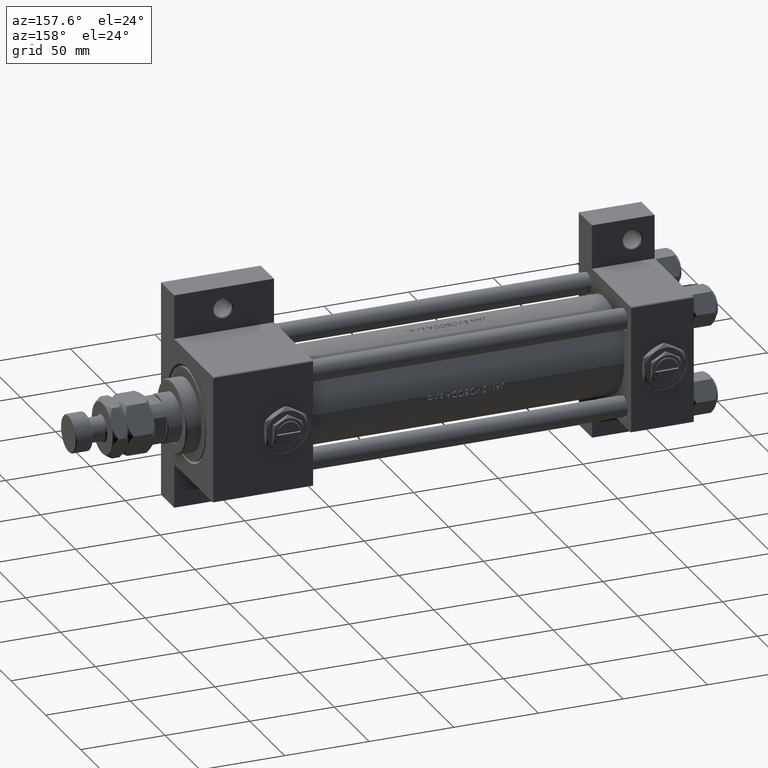
[diagram: clean part render]
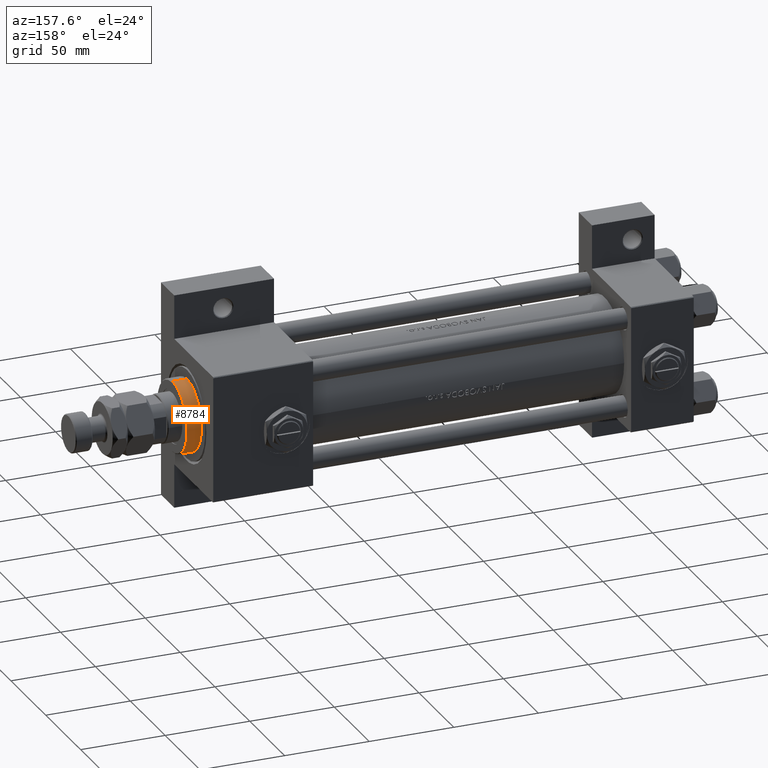
[diagram: same view with one face highlighted and labeled with its STEP entity id]
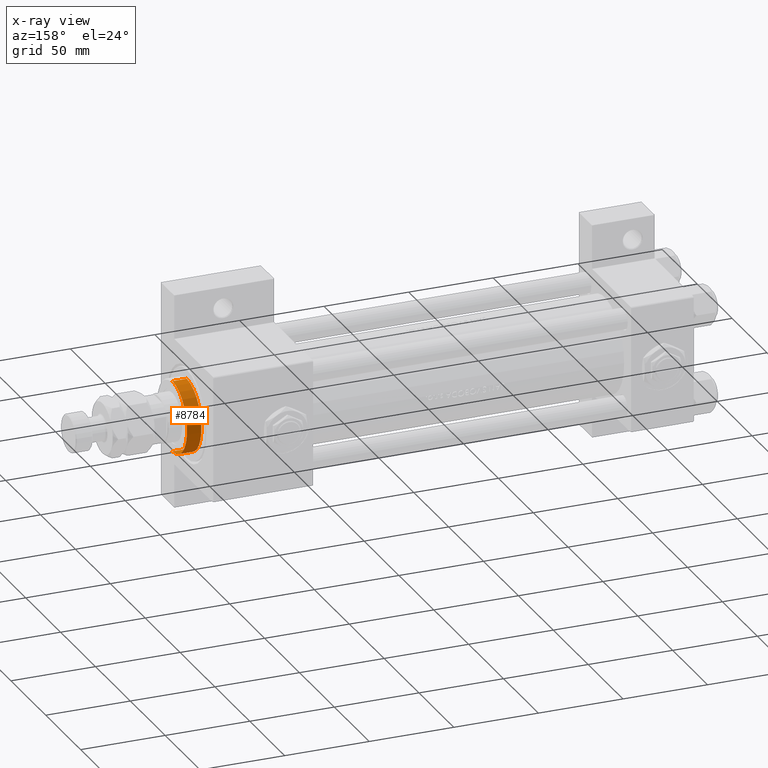
[diagram: x-ray of the same camera — body ghosted, the highlighted face saturated]
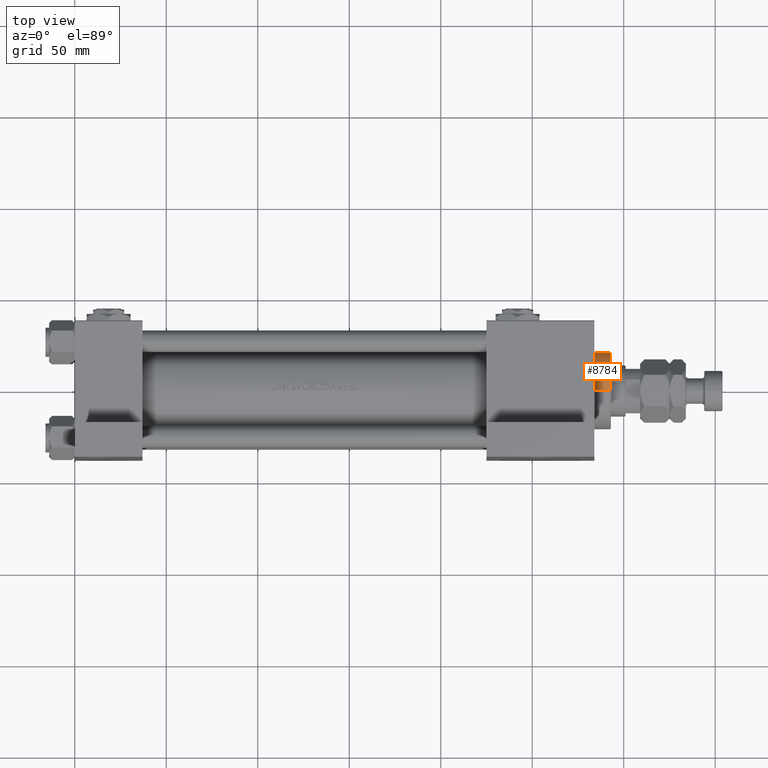
[diagram: same view with one face highlighted and labeled with its STEP entity id]
A machine part, auxiliary view. The second image highlights one B-rep face of the part: STEP entity #8784.
The next image is the same camera in x-ray: the body ghosted, the highlighted face saturated — about 0% of this face is hidden behind the body in this view.
A second angle (top view) of the same face is appended — the face is thin or edge-on in the first view.
In plain terms, the highlighted cylindrical surface (partial cylindrical patch) has radius 21 mm, axis along (-1, -0, 0).
Its self-contained STEP definition (entity closure, byte-faithful):
#432 = CARTESIAN_POINT ( 'NONE',  ( 0.000000000000000000, 0.000000000000000000, 37.19999999999999574 ) ) ;
#567 = CIRCLE ( 'NONE', #35744, 21.00000000000000000 ) ;
#1096 = DIRECTION ( 'NONE',  ( -0.000000000000000000, -0.000000000000000000, -1.000000000000000000 ) ) ;
#2176 = DIRECTION ( 'NONE',  ( -0.000000000000000000, -0.000000000000000000, -1.000000000000000000 ) ) ;
#6128 = VECTOR ( 'NONE', #1096, 1000.000000000000000 ) ;
#6872 = DIRECTION ( 'NONE',  ( 1.000000000000000000, 0.000000000000000000, 0.000000000000000000 ) ) ;
#6964 = VERTEX_POINT ( 'NONE', #38831 ) ;
#7480 = CARTESIAN_POINT ( 'NONE',  ( -21.00000000000000000, 0.000000000000000000, 37.19999999999999574 ) ) ;
#8449 = CARTESIAN_POINT ( 'NONE',  ( -21.00000000000000000, 0.000000000000000000, 28.69999999999999929 ) ) ;
#8784 = ADVANCED_FACE ( 'NONE', ( #17609 ), #28631, .T. ) ;
#10629 = CARTESIAN_POINT ( 'NONE',  ( 21.00000000000000000, 2.571758278209441661E-15, 37.69999999999999574 ) ) ;
#11860 = AXIS2_PLACEMENT_3D ( 'NONE', #17113, #20943, #28881 ) ;
#14758 = VERTEX_POINT ( 'NONE', #7480 ) ;
#16542 = DIRECTION ( 'NONE',  ( 0.000000000000000000, 0.000000000000000000, -1.000000000000000000 ) ) ;
#17113 = CARTESIAN_POINT ( 'NONE',  ( 0.000000000000000000, 0.000000000000000000, 37.69999999999999574 ) ) ;
#17609 = FACE_OUTER_BOUND ( 'NONE', #25203, .T. ) ;
#18044 = LINE ( 'NONE', #10629, #46275 ) ;
#20638 = DIRECTION ( 'NONE',  ( 1.000000000000000000, 0.000000000000000000, 0.000000000000000000 ) ) ;
#20943 = DIRECTION ( 'NONE',  ( -0.000000000000000000, -0.000000000000000000, -1.000000000000000000 ) ) ;
#22986 = ORIENTED_EDGE ( 'NONE', *, *, #49297, .T. ) ;
#25203 = EDGE_LOOP ( 'NONE', ( #50173, #40670, #22986, #25356 ) ) ;
#25356 = ORIENTED_EDGE ( 'NONE', *, *, #40181, .F. ) ;
#28631 = CYLINDRICAL_SURFACE ( 'NONE', #11860, 21.00000000000000000 ) ;
#28881 = DIRECTION ( 'NONE',  ( -1.000000000000000000, 0.000000000000000000, 0.000000000000000000 ) ) ;
#29402 = CARTESIAN_POINT ( 'NONE',  ( 0.000000000000000000, 0.000000000000000000, 28.69999999999999929 ) ) ;
#31586 = VERTEX_POINT ( 'NONE', #37590 ) ;
#35744 = AXIS2_PLACEMENT_3D ( 'NONE', #432, #16542, #20638 ) ;
#37590 = CARTESIAN_POINT ( 'NONE',  ( 21.00000000000000000, 2.571758278209441661E-15, 37.19999999999999574 ) ) ;
#38831 = CARTESIAN_POINT ( 'NONE',  ( 21.00000000000000000, 2.571758278209441661E-15, 28.69999999999999929 ) ) ;
#39452 = VERTEX_POINT ( 'NONE', #8449 ) ;
#39787 = CARTESIAN_POINT ( 'NONE',  ( -21.00000000000000000, 0.000000000000000000, 37.69999999999999574 ) ) ;
#39883 = AXIS2_PLACEMENT_3D ( 'NONE', #29402, #45063, #6872 ) ;
#40181 = EDGE_CURVE ( 'NONE', #14758, #39452, #40982, .T. ) ;
#40670 = ORIENTED_EDGE ( 'NONE', *, *, #40761, .T. ) ;
#40761 = EDGE_CURVE ( 'NONE', #31586, #6964, #18044, .T. ) ;
#40982 = LINE ( 'NONE', #39787, #6128 ) ;
#45063 = DIRECTION ( 'NONE',  ( 0.000000000000000000, 0.000000000000000000, 1.000000000000000000 ) ) ;
#46275 = VECTOR ( 'NONE', #2176, 1000.000000000000000 ) ;
#48763 = EDGE_CURVE ( 'NONE', #14758, #31586, #567, .T. ) ;
#49297 = EDGE_CURVE ( 'NONE', #6964, #39452, #49758, .T. ) ;
#49758 = CIRCLE ( 'NONE', #39883, 21.00000000000000000 ) ;
#50173 = ORIENTED_EDGE ( 'NONE', *, *, #48763, .T. ) ;